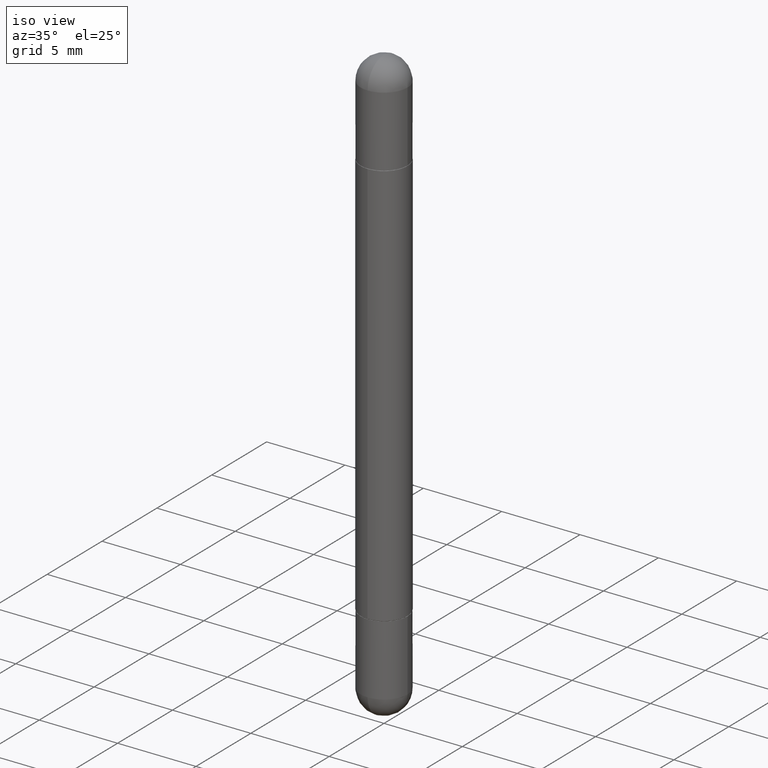
[diagram: clean part render]
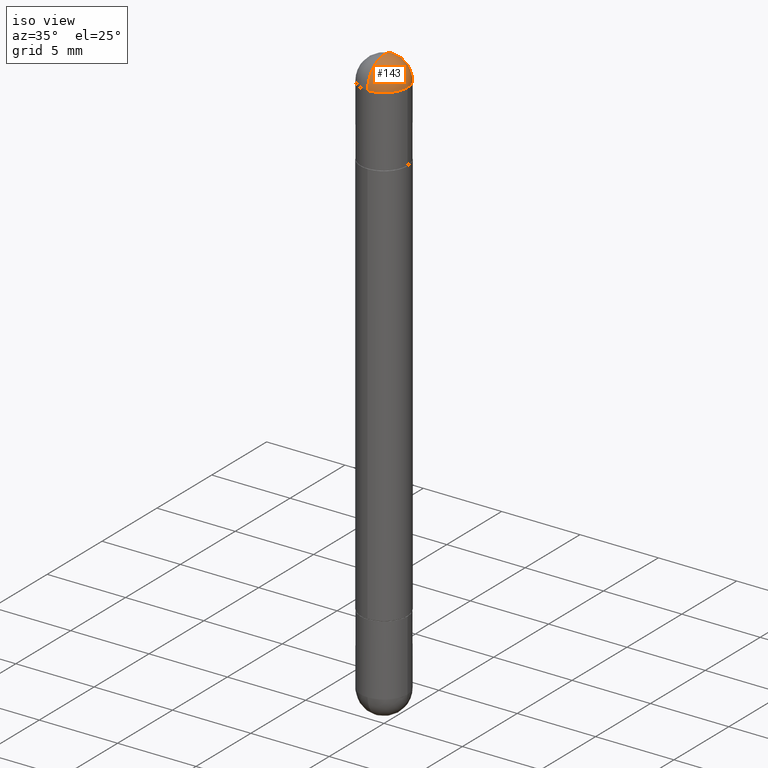
[diagram: same view with one face highlighted and labeled with its STEP entity id]
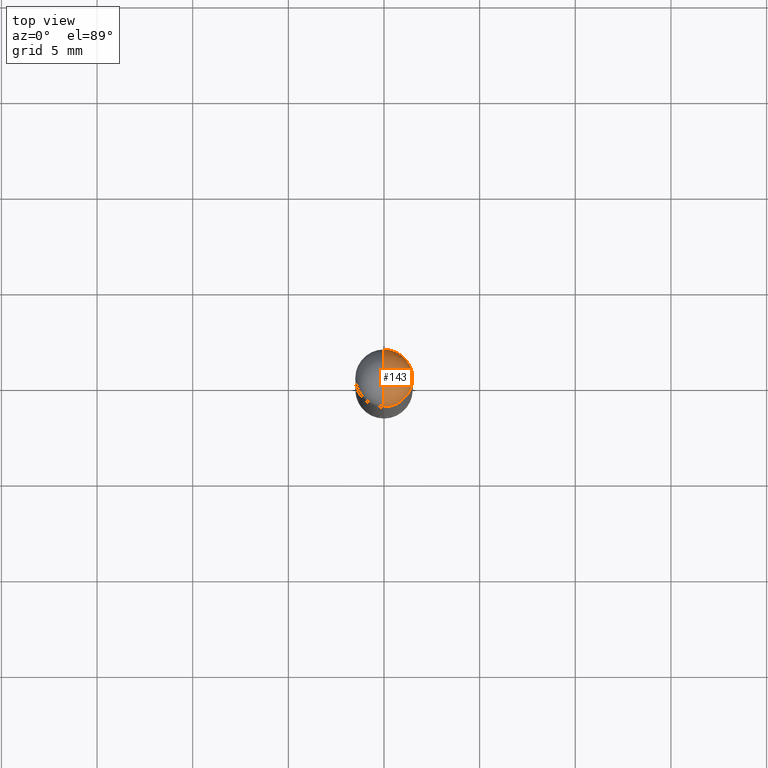
[diagram: same view with one face highlighted and labeled with its STEP entity id]
A machine part, iso view. The second image highlights one B-rep face of the part: STEP entity #143.
A second angle (top view) of the same face is appended — the face is thin or edge-on in the first view.
In plain terms, the highlighted spherical surface has radius 1.4999 mm.
Its self-contained STEP definition (entity closure, byte-faithful):
#25 = EDGE_CURVE ( 'NONE', #614, #249, #470, .T. ) ;
#40 = AXIS2_PLACEMENT_3D ( 'NONE', #531, #41, #801 ) ;
#41 = DIRECTION ( 'NONE',  ( -1.000000000000000000, 6.982962677686265922E-15, 4.883557194083112340E-29 ) ) ;
#48 = DIRECTION ( 'NONE',  ( 1.000000000000000000, -6.982962677686270655E-15, 0.000000000000000000 ) ) ;
#90 = AXIS2_PLACEMENT_3D ( 'NONE', #731, #348, #48 ) ;
#116 = ORIENTED_EDGE ( 'NONE', *, *, #598, .T. ) ;
#143 = ADVANCED_FACE ( 'NONE', ( #164 ), #371, .T. ) ;
#155 = CARTESIAN_POINT ( 'NONE',  ( 3.183141170014464762E-29, -5.491615626124592102E-15, -0.05905000000000028976 ) ) ;
#164 = FACE_OUTER_BOUND ( 'NONE', #802, .T. ) ;
#209 = DIRECTION ( 'NONE',  ( 6.860497997771530774E-15, 1.000000000000000000, 0.000000000000000000 ) ) ;
#212 = CARTESIAN_POINT ( 'NONE',  ( 0.05905000000000001914, -5.120519244513884944E-15, -0.05905000000000028976 ) ) ;
#249 = VERTEX_POINT ( 'NONE', #212 ) ;
#261 = DIRECTION ( 'NONE',  ( 2.445468806185136597E-29, -3.491481338843145583E-15, 1.000000000000000000 ) ) ;
#271 = CARTESIAN_POINT ( 'NONE',  ( -4.051124067683763770E-16, -0.05905000000000539678, -0.05905000000000049099 ) ) ;
#276 = VERTEX_POINT ( 'NONE', #711 ) ;
#278 = CIRCLE ( 'NONE', #745, 0.05905000000000025506 ) ;
#302 = CARTESIAN_POINT ( 'NONE',  ( 3.183141170014464762E-29, -5.491615626124592102E-15, -0.05905000000000028976 ) ) ;
#335 = EDGE_CURVE ( 'NONE', #249, #490, #663, .T. ) ;
#341 = EDGE_CURVE ( 'NONE', #276, #490, #758, .T. ) ;
#348 = DIRECTION ( 'NONE',  ( 2.445468806185136597E-29, -3.491481338843145583E-15, 1.000000000000000000 ) ) ;
#371 = SPHERICAL_SURFACE ( 'NONE', #400, 0.05905000000000025506 ) ;
#400 = AXIS2_PLACEMENT_3D ( 'NONE', #302, #548, #661 ) ;
#450 = AXIS2_PLACEMENT_3D ( 'NONE', #706, #261, #571 ) ;
#470 = CIRCLE ( 'NONE', #450, 0.05905000000000001914 ) ;
#490 = VERTEX_POINT ( 'NONE', #635 ) ;
#530 = ORIENTED_EDGE ( 'NONE', *, *, #25, .T. ) ;
#531 = CARTESIAN_POINT ( 'NONE',  ( 3.183141170014464762E-29, -5.491615626124592102E-15, -0.05905000000000028976 ) ) ;
#548 = DIRECTION ( 'NONE',  ( 1.000000000000000000, -6.982962677686265922E-15, -4.883557194083112340E-29 ) ) ;
#571 = DIRECTION ( 'NONE',  ( 1.000000000000000000, -6.982962677686270655E-15, 0.000000000000000000 ) ) ;
#598 = EDGE_CURVE ( 'NONE', #276, #614, #278, .T. ) ;
#614 = VERTEX_POINT ( 'NONE', #271 ) ;
#618 = ORIENTED_EDGE ( 'NONE', *, *, #341, .F. ) ;
#635 = CARTESIAN_POINT ( 'NONE',  ( 4.123439461174084467E-16, 0.05904999999999487742, -0.05905000000000008159 ) ) ;
#655 = DIRECTION ( 'NONE',  ( 1.000000000000000000, -6.860497997771530774E-15, -4.840798879624142912E-29 ) ) ;
#661 = DIRECTION ( 'NONE',  ( 6.982962677686265922E-15, 1.000000000000000000, 3.469747663417762014E-15 ) ) ;
#663 = CIRCLE ( 'NONE', #90, 0.05905000000000001914 ) ;
#706 = CARTESIAN_POINT ( 'NONE',  ( 3.514260947928350449E-29, -5.017433257984542594E-15, -0.05905000000000028976 ) ) ;
#711 = CARTESIAN_POINT ( 'NONE',  ( 3.330070981488499955E-29, -5.694171829508798064E-15, -3.414809992080329023E-17 ) ) ;
#731 = CARTESIAN_POINT ( 'NONE',  ( 3.514260947928350449E-29, -5.017433257984542594E-15, -0.05905000000000028976 ) ) ;
#745 = AXIS2_PLACEMENT_3D ( 'NONE', #155, #655, #209 ) ;
#758 = CIRCLE ( 'NONE', #40, 0.05905000000000025506 ) ;
#801 = DIRECTION ( 'NONE',  ( -6.982962677686266711E-15, -1.000000000000000000, 0.000000000000000000 ) ) ;
#802 = EDGE_LOOP ( 'NONE', ( #618, #116, #530, #816 ) ) ;
#816 = ORIENTED_EDGE ( 'NONE', *, *, #335, .T. ) ;